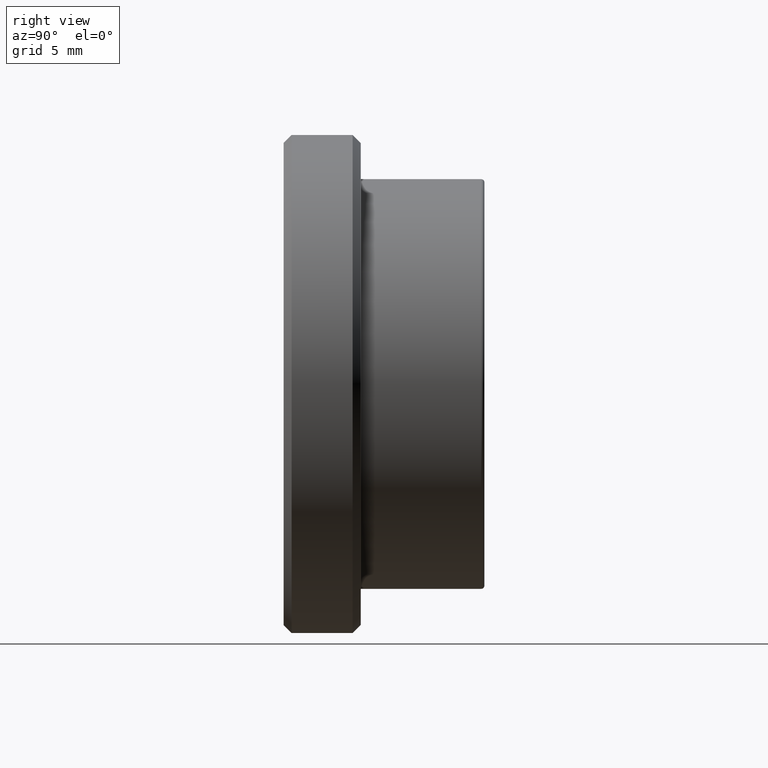
[diagram: clean part render]
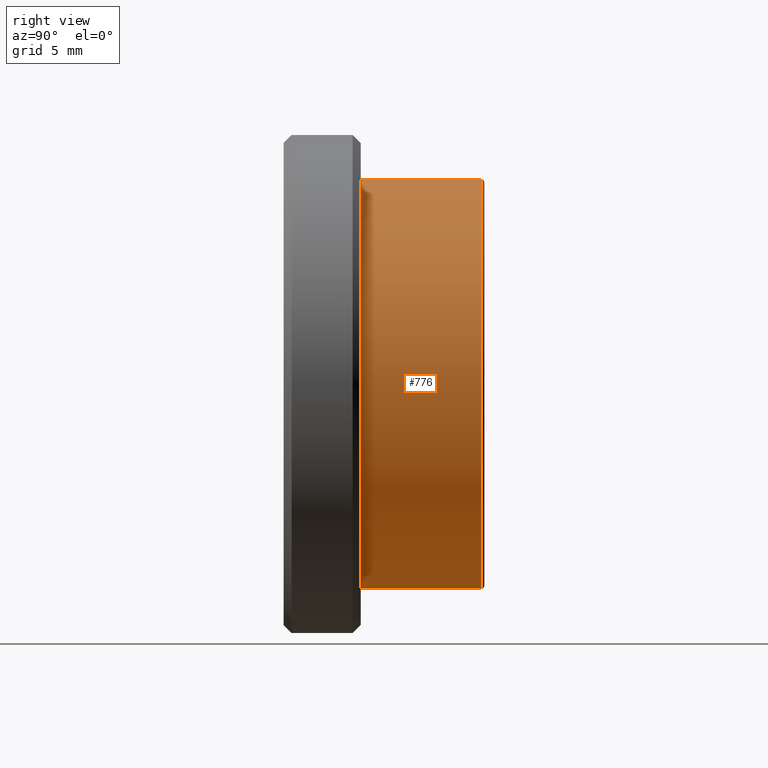
[diagram: same view with one face highlighted and labeled with its STEP entity id]
A machine part, right view. The second image highlights one B-rep face of the part: STEP entity #776.
In plain terms, the highlighted cylindrical surface (partial cylindrical patch) has radius 12.75 mm, axis along (-0, 1, -0).
Its self-contained STEP definition (entity closure, byte-faithful):
#21 = DIRECTION ( 'NONE',  ( 0.0000000000000000000, -1.000000000000000000, 0.0000000000000000000 ) ) ;
#23 = VECTOR ( 'NONE', #554, 1000.000000000000000 ) ;
#28 = AXIS2_PLACEMENT_3D ( 'NONE', #254, #323, #796 ) ;
#41 = CIRCLE ( 'NONE', #28, 12.75000000000000200 ) ;
#48 = AXIS2_PLACEMENT_3D ( 'NONE', #838, #21, #626 ) ;
#60 = CIRCLE ( 'NONE', #48, 12.75000000000000200 ) ;
#77 = CARTESIAN_POINT ( 'NONE',  ( 0.0000000000000000000, 12.50000000000000000, 0.0000000000000000000 ) ) ;
#79 = CARTESIAN_POINT ( 'NONE',  ( 0.0000000000000000000, 12.30000000000000100, 12.75000000000000200 ) ) ;
#92 = ORIENTED_EDGE ( 'NONE', *, *, #321, .T. ) ;
#139 = LINE ( 'NONE', #753, #534 ) ;
#208 = AXIS2_PLACEMENT_3D ( 'NONE', #77, #296, #244 ) ;
#244 = DIRECTION ( 'NONE',  ( 0.0000000000000000000, 0.0000000000000000000, 1.000000000000000000 ) ) ;
#254 = CARTESIAN_POINT ( 'NONE',  ( 0.0000000000000000000, 4.799999999999999800, 0.0000000000000000000 ) ) ;
#255 = VERTEX_POINT ( 'NONE', #791 ) ;
#296 = DIRECTION ( 'NONE',  ( -0.0000000000000000000, 1.000000000000000000, -0.0000000000000000000 ) ) ;
#321 = EDGE_CURVE ( 'NONE', #542, #561, #41, .T. ) ;
#323 = DIRECTION ( 'NONE',  ( -0.0000000000000000000, 1.000000000000000000, -0.0000000000000000000 ) ) ;
#339 = CARTESIAN_POINT ( 'NONE',  ( 1.561424668912875500E-015, 4.799999999999999800, -12.75000000000000200 ) ) ;
#360 = ORIENTED_EDGE ( 'NONE', *, *, #587, .F. ) ;
#363 = CYLINDRICAL_SURFACE ( 'NONE', #208, 12.75000000000000200 ) ;
#408 = DIRECTION ( 'NONE',  ( -0.0000000000000000000, 1.000000000000000000, -0.0000000000000000000 ) ) ;
#534 = VECTOR ( 'NONE', #408, 1000.000000000000000 ) ;
#542 = VERTEX_POINT ( 'NONE', #741 ) ;
#554 = DIRECTION ( 'NONE',  ( -0.0000000000000000000, 1.000000000000000000, -0.0000000000000000000 ) ) ;
#561 = VERTEX_POINT ( 'NONE', #339 ) ;
#587 = EDGE_CURVE ( 'NONE', #542, #603, #139, .T. ) ;
#603 = VERTEX_POINT ( 'NONE', #79 ) ;
#618 = CARTESIAN_POINT ( 'NONE',  ( 1.561424668912875500E-015, 12.50000000000000000, -12.75000000000000200 ) ) ;
#626 = DIRECTION ( 'NONE',  ( 0.0000000000000000000, 0.0000000000000000000, -1.000000000000000000 ) ) ;
#648 = EDGE_LOOP ( 'NONE', ( #92, #858, #849, #360 ) ) ;
#699 = EDGE_CURVE ( 'NONE', #255, #603, #60, .T. ) ;
#741 = CARTESIAN_POINT ( 'NONE',  ( 0.0000000000000000000, 4.799999999999999800, 12.75000000000000200 ) ) ;
#753 = CARTESIAN_POINT ( 'NONE',  ( 0.0000000000000000000, 12.50000000000000000, 12.75000000000000200 ) ) ;
#776 = ADVANCED_FACE ( 'NONE', ( #792 ), #363, .T. ) ;
#782 = LINE ( 'NONE', #618, #23 ) ;
#791 = CARTESIAN_POINT ( 'NONE',  ( 1.561424668912875500E-015, 12.30000000000000100, -12.75000000000000200 ) ) ;
#792 = FACE_OUTER_BOUND ( 'NONE', #648, .T. ) ;
#796 = DIRECTION ( 'NONE',  ( 0.0000000000000000000, 0.0000000000000000000, 1.000000000000000000 ) ) ;
#838 = CARTESIAN_POINT ( 'NONE',  ( 0.0000000000000000000, 12.30000000000000100, 0.0000000000000000000 ) ) ;
#849 = ORIENTED_EDGE ( 'NONE', *, *, #699, .T. ) ;
#857 = EDGE_CURVE ( 'NONE', #561, #255, #782, .T. ) ;
#858 = ORIENTED_EDGE ( 'NONE', *, *, #857, .T. ) ;